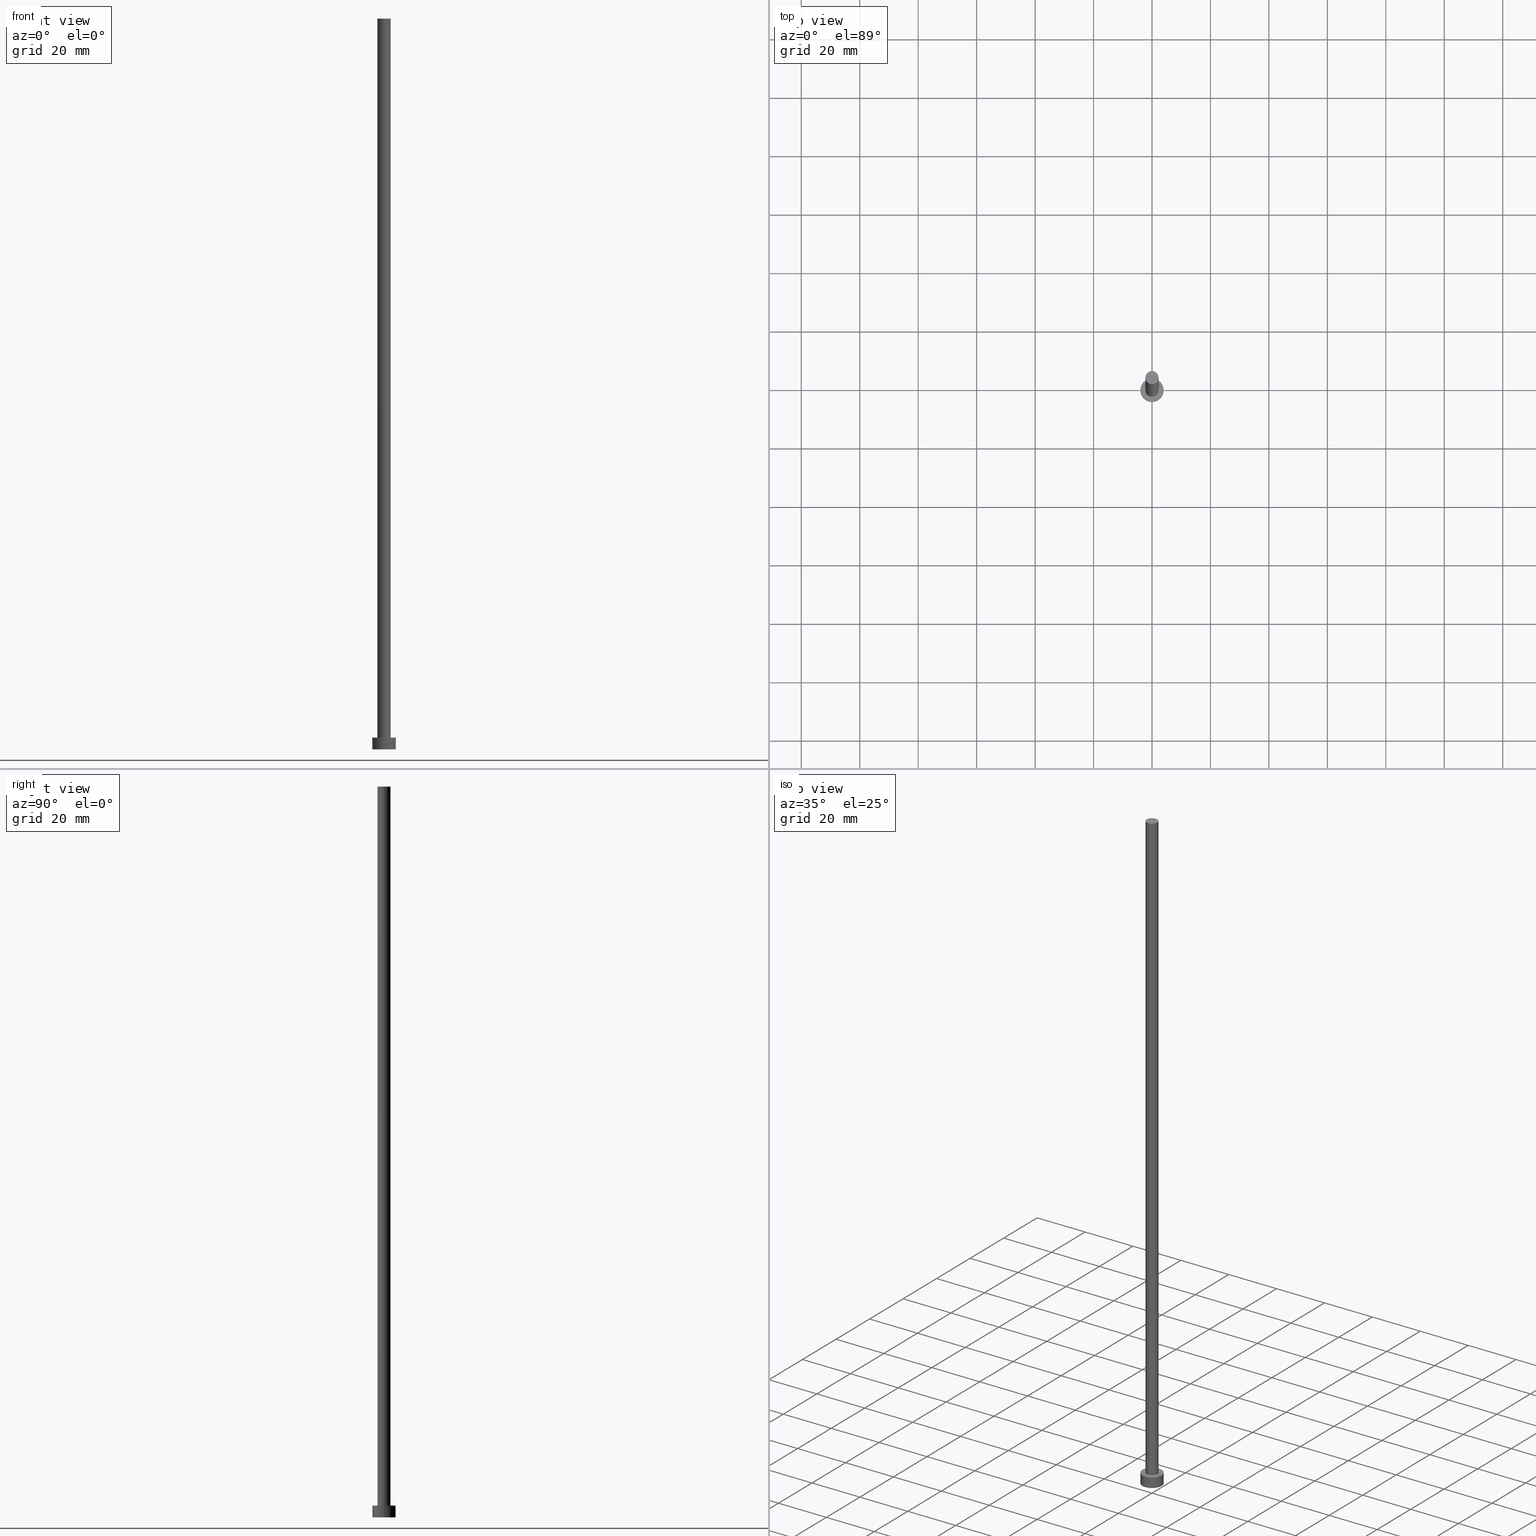
[diagram: canonical four-view strip — front | top / right | iso, engineering-drawing reading convention]
A machine part, canonical four-view strip (front | top / right | iso — engineering-drawing reading convention). The complete STEP part file that produces these views, byte-faithful:
ISO-10303-21;
HEADER;
FILE_DESCRIPTION (( 'STEP AP203' ),
    '1' );
FILE_NAME ('3ae3.STEP',
    '2023-02-13T16:20:21',
    ( '' ),
    ( '' ),
    'SwSTEP 2.0',
    'SolidWorks 2019',
    '' );
FILE_SCHEMA (( 'CONFIG_CONTROL_DESIGN' ));
ENDSEC;

DATA;
#1 = APPLICATION_CONTEXT ( 'configuration controlled 3d designs of mechanical parts and assemblies' ) ;
#2 = LINE ( 'NONE', #218, #221 ) ;
#3 = FACE_OUTER_BOUND ( 'NONE', #194, .T. ) ;
#4 = FACE_BOUND ( 'NONE', #235, .T. ) ;
#5 = ORIENTED_EDGE ( 'NONE', *, *, #186, .F. ) ;
#6 =( NAMED_UNIT ( * ) SI_UNIT ( $, .STERADIAN. ) SOLID_ANGLE_UNIT ( ) );
#7 = DIRECTION ( 'NONE',  ( 1.000000000000000000, 0.000000000000000000, 0.000000000000000000 ) ) ;
#8 = SECURITY_CLASSIFICATION_LEVEL ( 'unclassified' ) ;
#9 = CARTESIAN_POINT ( 'NONE',  ( 0.000000000000000000, 0.000000000000000000, 250.0000000000000000 ) ) ;
#10 = APPROVAL_ROLE ( '' ) ;
#11 = DIRECTION ( 'NONE',  ( 0.000000000000000000, 0.000000000000000000, 1.000000000000000000 ) ) ;
#12 = EDGE_CURVE ( 'NONE', #191, #164, #29, .T. ) ;
#13 = AXIS2_PLACEMENT_3D ( 'NONE', #175, #252, #255 ) ;
#14 = VERTEX_POINT ( 'NONE', #114 ) ;
#15 = ORIENTED_EDGE ( 'NONE', *, *, #53, .T. ) ;
#16 = CIRCLE ( 'NONE', #187, 2.250000000000000000 ) ;
#17 = ADVANCED_FACE ( 'NONE', ( #153 ), #94, .F. ) ;
#18 = VERTEX_POINT ( 'NONE', #127 ) ;
#19 = MANIFOLD_SOLID_BREP ( 'P�idat vysunut�m3', #125 ) ;
#20 = CARTESIAN_POINT ( 'NONE',  ( 0.000000000000000000, 0.000000000000000000, 250.0000000000000000 ) ) ;
#21 = AXIS2_PLACEMENT_3D ( 'NONE', #210, #68, #7 ) ;
#22 = SECURITY_CLASSIFICATION ( '', '', #8 ) ;
#23 = CYLINDRICAL_SURFACE ( 'NONE', #148, 2.250000000000000000 ) ;
#24 = CYLINDRICAL_SURFACE ( 'NONE', #107, 4.000000000000000000 ) ;
#25 = PRODUCT_RELATED_PRODUCT_CATEGORY ( 'detail', '', ( #105 ) ) ;
#26 = CALENDAR_DATE ( 2023, 13, 2 ) ;
#27 = ADVANCED_FACE ( 'NONE', ( #76 ), #236, .T. ) ;
#28 = DATE_AND_TIME ( #206, #118 ) ;
#29 = LINE ( 'NONE', #133, #193 ) ;
#30 = ORIENTED_EDGE ( 'NONE', *, *, #36, .F. ) ;
#31 = COORDINATED_UNIVERSAL_TIME_OFFSET ( 1, 0, .AHEAD. ) ;
#32 = CC_DESIGN_APPROVAL ( #95, ( #152 ) ) ;
#33 = VERTEX_POINT ( 'NONE', #145 ) ;
#34 = EDGE_LOOP ( 'NONE', ( #135, #63 ) ) ;
#35 = EDGE_LOOP ( 'NONE', ( #251, #113 ) ) ;
#36 = EDGE_CURVE ( 'NONE', #65, #191, #70, .T. ) ;
#37 = DIRECTION ( 'NONE',  ( 1.000000000000000000, 0.000000000000000000, -0.000000000000000000 ) ) ;
#38 = DIRECTION ( 'NONE',  ( -0.000000000000000000, -0.000000000000000000, -1.000000000000000000 ) ) ;
#39 = DIRECTION ( 'NONE',  ( -0.000000000000000000, -0.000000000000000000, -1.000000000000000000 ) ) ;
#40 = EDGE_CURVE ( 'NONE', #151, #33, #212, .T. ) ;
#41 = CARTESIAN_POINT ( 'NONE',  ( -4.000000000000000000, 0.000000000000000000, 4.000000000000000000 ) ) ;
#42 = PERSON ( 'NEUR�EN�', 'NEUR�EN�', 'NEUR�EN�', ('NEUR�EN�'), ('NEUR�EN�'), ('NEUR�EN�') ) ;
#43 = ORIENTED_EDGE ( 'NONE', *, *, #12, .F. ) ;
#44 =( LENGTH_UNIT ( ) NAMED_UNIT ( * ) SI_UNIT ( .MILLI., .METRE. ) );
#45 = APPROVAL_STATUS ( 'not_yet_approved' ) ;
#46 = PERSON_AND_ORGANIZATION ( #42, #111 ) ;
#47 = ORIENTED_EDGE ( 'NONE', *, *, #225, .F. ) ;
#48 = ORIENTED_EDGE ( 'NONE', *, *, #12, .T. ) ;
#49 = EDGE_CURVE ( 'NONE', #18, #164, #100, .T. ) ;
#50 = COORDINATED_UNIVERSAL_TIME_OFFSET ( 1, 0, .AHEAD. ) ;
#51 = AXIS2_PLACEMENT_3D ( 'NONE', #237, #82, #37 ) ;
#52 = CALENDAR_DATE ( 2023, 13, 2 ) ;
#53 = EDGE_CURVE ( 'NONE', #151, #97, #216, .T. ) ;
#54 = SHAPE_DEFINITION_REPRESENTATION ( #199, #219 ) ;
#55 = ORIENTED_EDGE ( 'NONE', *, *, #53, .F. ) ;
#56 = AXIS2_PLACEMENT_3D ( 'NONE', #249, #74, #149 ) ;
#57 = EDGE_CURVE ( 'NONE', #33, #151, #203, .T. ) ;
#58 = CARTESIAN_POINT ( 'NONE',  ( 0.000000000000000000, 0.000000000000000000, 0.000000000000000000 ) ) ;
#59 = ADVANCED_FACE ( 'NONE', ( #102 ), #24, .T. ) ;
#60 = CARTESIAN_POINT ( 'NONE',  ( 0.000000000000000000, 0.000000000000000000, 4.000000000000000000 ) ) ;
#61 = DIRECTION ( 'NONE',  ( -0.000000000000000000, -0.000000000000000000, -1.000000000000000000 ) ) ;
#62 = CC_DESIGN_PERSON_AND_ORGANIZATION_ASSIGNMENT ( #144, #188, ( #179 ) ) ;
#63 = ORIENTED_EDGE ( 'NONE', *, *, #57, .T. ) ;
#64 = CARTESIAN_POINT ( 'NONE',  ( 0.000000000000000000, 0.000000000000000000, 4.000000000000000000 ) ) ;
#65 = VERTEX_POINT ( 'NONE', #184 ) ;
#66 = ORIENTED_EDGE ( 'NONE', *, *, #202, .T. ) ;
#67 = EDGE_CURVE ( 'NONE', #14, #97, #254, .T. ) ;
#68 = DIRECTION ( 'NONE',  ( 0.000000000000000000, 0.000000000000000000, 1.000000000000000000 ) ) ;
#69 = COORDINATED_UNIVERSAL_TIME_OFFSET ( 1, 0, .AHEAD. ) ;
#70 = CIRCLE ( 'NONE', #243, 2.250000000000000000 ) ;
#71 = DIRECTION ( 'NONE',  ( -0.000000000000000000, -0.000000000000000000, -1.000000000000000000 ) ) ;
#72 = APPROVAL_STATUS ( 'not_yet_approved' ) ;
#73 = APPROVAL ( #72, 'NEUR�EN�' ) ;
#74 = DIRECTION ( 'NONE',  ( 0.000000000000000000, 0.000000000000000000, 1.000000000000000000 ) ) ;
#75 = ORIENTED_EDGE ( 'NONE', *, *, #40, .F. ) ;
#76 = FACE_OUTER_BOUND ( 'NONE', #143, .T. ) ;
#77 = DIRECTION ( 'NONE',  ( 0.000000000000000000, 0.000000000000000000, 1.000000000000000000 ) ) ;
#78 = DIRECTION ( 'NONE',  ( -0.000000000000000000, -0.000000000000000000, -1.000000000000000000 ) ) ;
#79 = FACE_OUTER_BOUND ( 'NONE', #242, .T. ) ;
#80 = AXIS2_PLACEMENT_3D ( 'NONE', #214, #106, #176 ) ;
#81 = CARTESIAN_POINT ( 'NONE',  ( -4.000000000000000000, 0.000000000000000000, 4.000000000000000000 ) ) ;
#82 = DIRECTION ( 'NONE',  ( 0.000000000000000000, 0.000000000000000000, 1.000000000000000000 ) ) ;
#83 = ORIENTED_EDGE ( 'NONE', *, *, #49, .T. ) ;
#84 = CALENDAR_DATE ( 2023, 13, 2 ) ;
#85 = APPROVAL_ROLE ( '' ) ;
#86 = DESIGN_CONTEXT ( 'detailed design', #1, 'design' ) ;
#87 = CC_DESIGN_APPROVAL ( #134, ( #22 ) ) ;
#88 = PERSON_AND_ORGANIZATION ( #42, #111 ) ;
#89 = DATE_AND_TIME ( #26, #200 ) ;
#90 = DIRECTION ( 'NONE',  ( 1.000000000000000000, 0.000000000000000000, 0.000000000000000000 ) ) ;
#91 = ORIENTED_EDGE ( 'NONE', *, *, #67, .T. ) ;
#92 = LOCAL_TIME ( 17, 20, 21.00000000000000000, #50 ) ;
#93 = AXIS2_PLACEMENT_3D ( 'NONE', #240, #195, #138 ) ;
#94 = PLANE ( 'NONE',  #13 ) ;
#95 = APPROVAL ( #45, 'NEUR�EN�' ) ;
#96 = CARTESIAN_POINT ( 'NONE',  ( -4.000000000000000000, 0.000000000000000000, 0.000000000000000000 ) ) ;
#97 = VERTEX_POINT ( 'NONE', #96 ) ;
#98 = DIRECTION ( 'NONE',  ( 0.000000000000000000, 0.000000000000000000, 1.000000000000000000 ) ) ;
#99 = ADVANCED_FACE ( 'NONE', ( #161 ), #183, .T. ) ;
#100 = CIRCLE ( 'NONE', #56, 2.250000000000000000 ) ;
#101 = DIRECTION ( 'NONE',  ( 1.000000000000000000, 0.000000000000000000, 0.000000000000000000 ) ) ;
#102 = FACE_OUTER_BOUND ( 'NONE', #197, .T. ) ;
#103 = DATE_TIME_ROLE ( 'creation_date' ) ;
#104 = DATE_TIME_ROLE ( 'classification_date' ) ;
#105 = PRODUCT ( '3ae3', '3ae3', '', ( #146 ) ) ;
#106 = DIRECTION ( 'NONE',  ( -0.000000000000000000, -0.000000000000000000, -1.000000000000000000 ) ) ;
#107 = AXIS2_PLACEMENT_3D ( 'NONE', #60, #38, #157 ) ;
#108 = AXIS2_PLACEMENT_3D ( 'NONE', #198, #159, #141 ) ;
#109 = APPROVAL_PERSON_ORGANIZATION ( #88, #134, #10 ) ;
#110 = LOCAL_TIME ( 17, 20, 21.00000000000000000, #31 ) ;
#111 = ORGANIZATION ( 'NEUR�EN�', 'NEUR�EN�', '' ) ;
#112 = ORIENTED_EDGE ( 'NONE', *, *, #49, .F. ) ;
#113 = ORIENTED_EDGE ( 'NONE', *, *, #67, .F. ) ;
#114 = CARTESIAN_POINT ( 'NONE',  ( 4.000000000000000000, 4.898587196589412829E-16, 0.000000000000000000 ) ) ;
#115 = CARTESIAN_POINT ( 'NONE',  ( -2.250000000000000000, 0.000000000000000000, 250.0000000000000000 ) ) ;
#116 = CIRCLE ( 'NONE', #108, 2.250000000000000000 ) ;
#117 = CYLINDRICAL_SURFACE ( 'NONE', #196, 4.000000000000000000 ) ;
#118 = LOCAL_TIME ( 17, 20, 21.00000000000000000, #208 ) ;
#119 = DIRECTION ( 'NONE',  ( -0.000000000000000000, -0.000000000000000000, -1.000000000000000000 ) ) ;
#120 = DIRECTION ( 'NONE',  ( -1.000000000000000000, 0.000000000000000000, 0.000000000000000000 ) ) ;
#121 = DIRECTION ( 'NONE',  ( 0.000000000000000000, 0.000000000000000000, 1.000000000000000000 ) ) ;
#122 = APPROVAL_ROLE ( '' ) ;
#123 = CC_DESIGN_DATE_AND_TIME_ASSIGNMENT ( #28, #104, ( #22 ) ) ;
#124 = PERSON_AND_ORGANIZATION ( #42, #111 ) ;
#125 = CLOSED_SHELL ( 'NONE', ( #250, #59, #140, #156, #17, #27, #99 ) ) ;
#126 = PERSON_AND_ORGANIZATION_ROLE ( 'classification_officer' ) ;
#127 = CARTESIAN_POINT ( 'NONE',  ( 2.250000000000000000, 2.755455298081544285E-16, 4.000000000000000000 ) ) ;
#128 = PERSON_AND_ORGANIZATION ( #42, #111 ) ;
#129 = CARTESIAN_POINT ( 'NONE',  ( 0.000000000000000000, 0.000000000000000000, 4.000000000000000000 ) ) ;
#130 = PERSON_AND_ORGANIZATION ( #42, #111 ) ;
#131 = DATE_AND_TIME ( #52, #92 ) ;
#132 = CC_DESIGN_PERSON_AND_ORGANIZATION_ASSIGNMENT ( #46, #126, ( #22 ) ) ;
#133 = CARTESIAN_POINT ( 'NONE',  ( -2.250000000000000000, 0.000000000000000000, 250.0000000000000000 ) ) ;
#134 = APPROVAL ( #168, 'NEUR�EN�' ) ;
#135 = ORIENTED_EDGE ( 'NONE', *, *, #40, .T. ) ;
#136 = DIRECTION ( 'NONE',  ( 1.000000000000000000, 0.000000000000000000, 0.000000000000000000 ) ) ;
#137 = DIRECTION ( 'NONE',  ( -1.000000000000000000, 0.000000000000000000, 0.000000000000000000 ) ) ;
#138 = DIRECTION ( 'NONE',  ( 1.000000000000000000, 0.000000000000000000, 0.000000000000000000 ) ) ;
#139 = DIRECTION ( 'NONE',  ( -0.000000000000000000, -0.000000000000000000, -1.000000000000000000 ) ) ;
#140 = ADVANCED_FACE ( 'NONE', ( #3 ), #117, .T. ) ;
#141 = DIRECTION ( 'NONE',  ( 1.000000000000000000, 0.000000000000000000, 0.000000000000000000 ) ) ;
#142 =( NAMED_UNIT ( * ) PLANE_ANGLE_UNIT ( ) SI_UNIT ( $, .RADIAN. ) );
#143 = EDGE_LOOP ( 'NONE', ( #173, #5, #48, #223 ) ) ;
#144 = PERSON_AND_ORGANIZATION ( #42, #111 ) ;
#145 = CARTESIAN_POINT ( 'NONE',  ( 4.000000000000000000, 4.898587196589412829E-16, 4.000000000000000000 ) ) ;
#146 = MECHANICAL_CONTEXT ( 'NONE', #172, 'mechanical' ) ;
#147 = EDGE_LOOP ( 'NONE', ( #220, #169 ) ) ;
#148 = AXIS2_PLACEMENT_3D ( 'NONE', #241, #61, #120 ) ;
#149 = DIRECTION ( 'NONE',  ( 1.000000000000000000, 0.000000000000000000, 0.000000000000000000 ) ) ;
#150 = APPROVAL_PERSON_ORGANIZATION ( #190, #73, #85 ) ;
#151 = VERTEX_POINT ( 'NONE', #41 ) ;
#152 = PRODUCT_DEFINITION ( 'NEZN�M�', '', #179, #86 ) ;
#153 = FACE_OUTER_BOUND ( 'NONE', #35, .T. ) ;
#154 = AXIS2_PLACEMENT_3D ( 'NONE', #182, #121, #204 ) ;
#155 = PLANE ( 'NONE',  #51 ) ;
#156 = ADVANCED_FACE ( 'NONE', ( #4, #158 ), #155, .T. ) ;
#157 = DIRECTION ( 'NONE',  ( -1.000000000000000000, 0.000000000000000000, 0.000000000000000000 ) ) ;
#158 = FACE_OUTER_BOUND ( 'NONE', #34, .T. ) ;
#159 = DIRECTION ( 'NONE',  ( 0.000000000000000000, 0.000000000000000000, 1.000000000000000000 ) ) ;
#160 = CIRCLE ( 'NONE', #93, 4.000000000000000000 ) ;
#161 = FACE_OUTER_BOUND ( 'NONE', #147, .T. ) ;
#162 = CC_DESIGN_DATE_AND_TIME_ASSIGNMENT ( #89, #103, ( #152 ) ) ;
#163 = ORIENTED_EDGE ( 'NONE', *, *, #232, .T. ) ;
#164 = VERTEX_POINT ( 'NONE', #178 ) ;
#165 = AXIS2_PLACEMENT_3D ( 'NONE', #129, #11, #171 ) ;
#166 = APPLICATION_PROTOCOL_DEFINITION ( 'international standard', 'config_control_design', 1994, #172 ) ;
#167 = DATE_AND_TIME ( #228, #110 ) ;
#168 = APPROVAL_STATUS ( 'not_yet_approved' ) ;
#169 = ORIENTED_EDGE ( 'NONE', *, *, #36, .T. ) ;
#170 = APPROVAL_DATE_TIME ( #230, #73 ) ;
#171 = DIRECTION ( 'NONE',  ( 1.000000000000000000, 0.000000000000000000, 0.000000000000000000 ) ) ;
#172 = APPLICATION_CONTEXT ( 'configuration controlled 3d designs of mechanical parts and assemblies' ) ;
#173 = ORIENTED_EDGE ( 'NONE', *, *, #232, .F. ) ;
#174 = CC_DESIGN_APPROVAL ( #73, ( #179 ) ) ;
#175 = CARTESIAN_POINT ( 'NONE',  ( 0.000000000000000000, 0.000000000000000000, 0.000000000000000000 ) ) ;
#176 = DIRECTION ( 'NONE',  ( -1.000000000000000000, 0.000000000000000000, 0.000000000000000000 ) ) ;
#177 = AXIS2_PLACEMENT_3D ( 'NONE', #58, #77, #101 ) ;
#178 = CARTESIAN_POINT ( 'NONE',  ( -2.250000000000000000, 0.000000000000000000, 4.000000000000000000 ) ) ;
#179 = PRODUCT_DEFINITION_FORMATION_WITH_SPECIFIED_SOURCE ( 'LIBOVOLN�', '', #105, .NOT_KNOWN. ) ;
#180 = CC_DESIGN_PERSON_AND_ORGANIZATION_ASSIGNMENT ( #130, #245, ( #152 ) ) ;
#181 = CC_DESIGN_SECURITY_CLASSIFICATION ( #22, ( #179 ) ) ;
#182 = CARTESIAN_POINT ( 'NONE',  ( 0.000000000000000000, 0.000000000000000000, 4.000000000000000000 ) ) ;
#183 = PLANE ( 'NONE',  #211 ) ;
#184 = CARTESIAN_POINT ( 'NONE',  ( 2.250000000000000000, 2.755455298081544285E-16, 250.0000000000000000 ) ) ;
#185 = PERSON_AND_ORGANIZATION_ROLE ( 'design_owner' ) ;
#186 = EDGE_CURVE ( 'NONE', #191, #65, #116, .T. ) ;
#187 = AXIS2_PLACEMENT_3D ( 'NONE', #64, #201, #136 ) ;
#188 = PERSON_AND_ORGANIZATION_ROLE ( 'creator' ) ;
#189 = APPROVAL_DATE_TIME ( #167, #95 ) ;
#190 = PERSON_AND_ORGANIZATION ( #42, #111 ) ;
#191 = VERTEX_POINT ( 'NONE', #115 ) ;
#192 = APPROVAL_DATE_TIME ( #131, #134 ) ;
#193 = VECTOR ( 'NONE', #71, 1000.000000000000000 ) ;
#194 = EDGE_LOOP ( 'NONE', ( #213, #75, #15, #209 ) ) ;
#195 = DIRECTION ( 'NONE',  ( 0.000000000000000000, 0.000000000000000000, 1.000000000000000000 ) ) ;
#196 = AXIS2_PLACEMENT_3D ( 'NONE', #222, #119, #137 ) ;
#197 = EDGE_LOOP ( 'NONE', ( #234, #66, #91, #55 ) ) ;
#198 = CARTESIAN_POINT ( 'NONE',  ( 0.000000000000000000, 0.000000000000000000, 250.0000000000000000 ) ) ;
#199 = PRODUCT_DEFINITION_SHAPE ( 'NONE', 'NONE',  #152 ) ;
#200 = LOCAL_TIME ( 17, 20, 21.00000000000000000, #205 ) ;
#201 = DIRECTION ( 'NONE',  ( 0.000000000000000000, 0.000000000000000000, 1.000000000000000000 ) ) ;
#202 = EDGE_CURVE ( 'NONE', #33, #14, #238, .T. ) ;
#203 = CIRCLE ( 'NONE', #154, 4.000000000000000000 ) ;
#204 = DIRECTION ( 'NONE',  ( 1.000000000000000000, 0.000000000000000000, 0.000000000000000000 ) ) ;
#205 = COORDINATED_UNIVERSAL_TIME_OFFSET ( 1, 0, .AHEAD. ) ;
#206 = CALENDAR_DATE ( 2023, 13, 2 ) ;
#207 = UNCERTAINTY_MEASURE_WITH_UNIT (LENGTH_MEASURE( 1.000000000000000082E-05 ), #44, 'distance_accuracy_value', 'NONE');
#208 = COORDINATED_UNIVERSAL_TIME_OFFSET ( 1, 0, .AHEAD. ) ;
#209 = ORIENTED_EDGE ( 'NONE', *, *, #226, .T. ) ;
#210 = CARTESIAN_POINT ( 'NONE',  ( 0.000000000000000000, 0.000000000000000000, 0.000000000000000000 ) ) ;
#211 = AXIS2_PLACEMENT_3D ( 'NONE', #20, #98, #239 ) ;
#212 = CIRCLE ( 'NONE', #165, 4.000000000000000000 ) ;
#213 = ORIENTED_EDGE ( 'NONE', *, *, #202, .F. ) ;
#214 = CARTESIAN_POINT ( 'NONE',  ( 0.000000000000000000, 0.000000000000000000, 250.0000000000000000 ) ) ;
#215 = CC_DESIGN_PERSON_AND_ORGANIZATION_ASSIGNMENT ( #128, #231, ( #179 ) ) ;
#216 = LINE ( 'NONE', #81, #246 ) ;
#217 = CARTESIAN_POINT ( 'NONE',  ( 4.000000000000000000, 4.898587196589412829E-16, 4.000000000000000000 ) ) ;
#218 = CARTESIAN_POINT ( 'NONE',  ( 2.250000000000000000, 2.755455298081544285E-16, 250.0000000000000000 ) ) ;
#219 = ADVANCED_BREP_SHAPE_REPRESENTATION ( '3ae3', ( #19, #21 ), #248 ) ;
#220 = ORIENTED_EDGE ( 'NONE', *, *, #186, .T. ) ;
#221 = VECTOR ( 'NONE', #39, 1000.000000000000000 ) ;
#222 = CARTESIAN_POINT ( 'NONE',  ( 0.000000000000000000, 0.000000000000000000, 4.000000000000000000 ) ) ;
#223 = ORIENTED_EDGE ( 'NONE', *, *, #225, .T. ) ;
#224 = VECTOR ( 'NONE', #139, 1000.000000000000000 ) ;
#225 = EDGE_CURVE ( 'NONE', #164, #18, #16, .T. ) ;
#226 = EDGE_CURVE ( 'NONE', #97, #14, #160, .T. ) ;
#227 = APPROVAL_PERSON_ORGANIZATION ( #229, #95, #122 ) ;
#228 = CALENDAR_DATE ( 2023, 13, 2 ) ;
#229 = PERSON_AND_ORGANIZATION ( #42, #111 ) ;
#230 = DATE_AND_TIME ( #84, #233 ) ;
#231 = PERSON_AND_ORGANIZATION_ROLE ( 'design_supplier' ) ;
#232 = EDGE_CURVE ( 'NONE', #65, #18, #2, .T. ) ;
#233 = LOCAL_TIME ( 17, 20, 21.00000000000000000, #69 ) ;
#234 = ORIENTED_EDGE ( 'NONE', *, *, #57, .F. ) ;
#235 = EDGE_LOOP ( 'NONE', ( #47, #112 ) ) ;
#236 = CYLINDRICAL_SURFACE ( 'NONE', #80, 2.250000000000000000 ) ;
#237 = CARTESIAN_POINT ( 'NONE',  ( 0.000000000000000000, 0.000000000000000000, 4.000000000000000000 ) ) ;
#238 = LINE ( 'NONE', #217, #224 ) ;
#239 = DIRECTION ( 'NONE',  ( 1.000000000000000000, 0.000000000000000000, -0.000000000000000000 ) ) ;
#240 = CARTESIAN_POINT ( 'NONE',  ( 0.000000000000000000, 0.000000000000000000, 0.000000000000000000 ) ) ;
#241 = CARTESIAN_POINT ( 'NONE',  ( 0.000000000000000000, 0.000000000000000000, 250.0000000000000000 ) ) ;
#242 = EDGE_LOOP ( 'NONE', ( #30, #163, #83, #43 ) ) ;
#243 = AXIS2_PLACEMENT_3D ( 'NONE', #9, #247, #90 ) ;
#244 = APPLICATION_PROTOCOL_DEFINITION ( 'international standard', 'config_control_design', 1994, #1 ) ;
#245 = PERSON_AND_ORGANIZATION_ROLE ( 'creator' ) ;
#246 = VECTOR ( 'NONE', #78, 1000.000000000000000 ) ;
#247 = DIRECTION ( 'NONE',  ( 0.000000000000000000, 0.000000000000000000, 1.000000000000000000 ) ) ;
#248 =( GEOMETRIC_REPRESENTATION_CONTEXT ( 3 ) GLOBAL_UNCERTAINTY_ASSIGNED_CONTEXT ( ( #207 ) ) GLOBAL_UNIT_ASSIGNED_CONTEXT ( ( #44, #142, #6 ) ) REPRESENTATION_CONTEXT ( 'NONE', 'WORKASPACE' ) );
#249 = CARTESIAN_POINT ( 'NONE',  ( 0.000000000000000000, 0.000000000000000000, 4.000000000000000000 ) ) ;
#250 = ADVANCED_FACE ( 'NONE', ( #79 ), #23, .T. ) ;
#251 = ORIENTED_EDGE ( 'NONE', *, *, #226, .F. ) ;
#252 = DIRECTION ( 'NONE',  ( 0.000000000000000000, 0.000000000000000000, 1.000000000000000000 ) ) ;
#253 = CC_DESIGN_PERSON_AND_ORGANIZATION_ASSIGNMENT ( #124, #185, ( #105 ) ) ;
#254 = CIRCLE ( 'NONE', #177, 4.000000000000000000 ) ;
#255 = DIRECTION ( 'NONE',  ( 1.000000000000000000, 0.000000000000000000, -0.000000000000000000 ) ) ;
ENDSEC;
END-ISO-10303-21;
